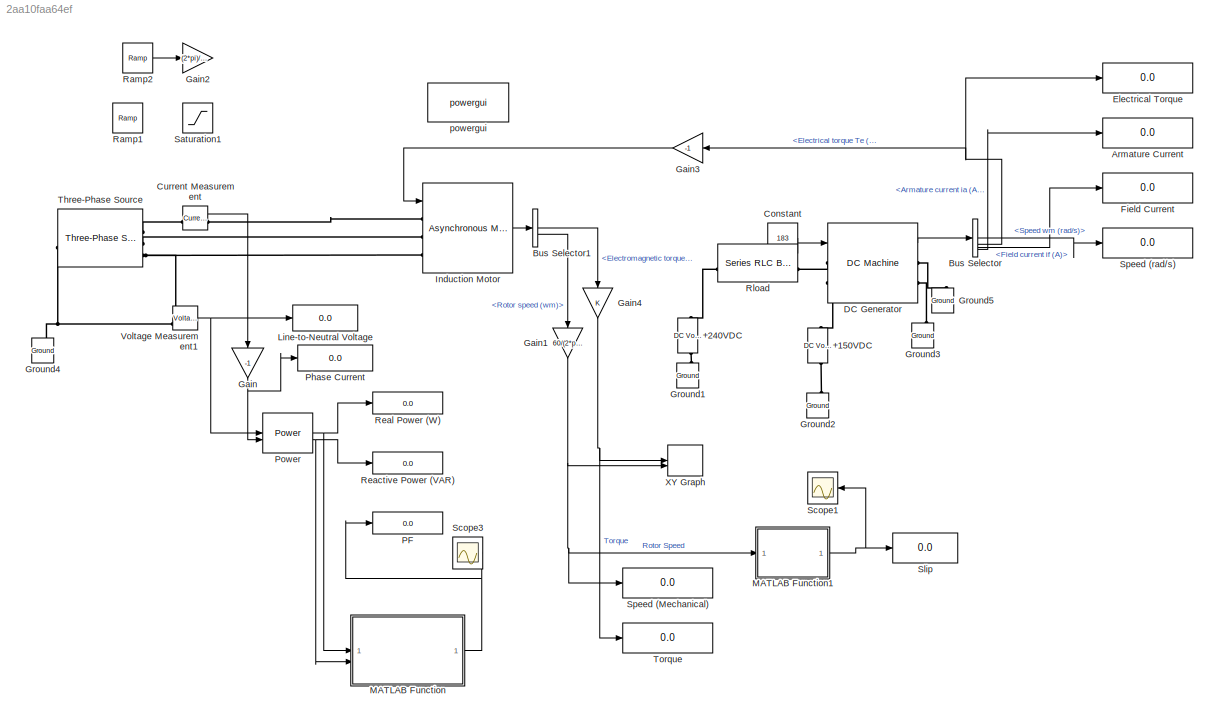
MODEL slx_2aa10faa64ef
KIND model
CONFIG AbsTol = auto
CONFIG EnableMultiTasking = off
CONFIG FixedStep = auto
CONFIG MaxStep = auto
CONFIG MinStep = auto
CONFIG RelTol = 1e-3
CONFIG SampleTimeConstraint = Unconstrained
CONFIG SolverName = ode15s
CONFIG StartTime = 0.0
CONFIG StopTime = 1
WORKSPACE source: mxarray member
WORKSPACE R = 10000
BLOCK [Reference] +150VDC  REF=spsDCVoltageSourceLib/DC Voltage Source
  LibrarySourceBlock = sps_lib/Sources/DC Voltage Source
  NameLocation = right
  SourceBlock = spsDCVoltageSourceLib/DC Voltage Source
  SourceType = DC Voltage Source
BLOCK [Reference] +240VDC  REF=spsDCVoltageSourceLib/DC Voltage Source
  LibrarySourceBlock = sps_lib/Sources/DC Voltage Source
  NameLocation = left
  SourceBlock = spsDCVoltageSourceLib/DC Voltage Source
  SourceType = DC Voltage Source
BLOCK [Display] Armature Current
  Decimation = 1
  NameLocation = top
BLOCK [BusSelector] Bus Selector
  OutputSignals = Speed wm (rad/s),Electrical torque Te (n m),Field current if (A),Armature current ia (A)
BLOCK [BusSelector] Bus Selector1
  OutputSignals = Mechanical.Electromagnetic torque Te (N*m),Mechanical.Rotor speed (wm)
BLOCK [Constant] Constant
  Value = 183
BLOCK [Reference] Current Measurement  REF=spsCurrentMeasurementLib/Current Measurement
  LibrarySourceBlock = sps_lib/Sensors and Measurements/Current Measurement
  SourceBlock = spsCurrentMeasurementLib/Current Measurement
  SourceType = Current Measurement
  UserDataPersistent = on
BLOCK [Reference] DC Generator  REF=spsDCMachineLib/DC Machine
  LibrarySourceBlock = sps_lib/Electrical Machines/DC Machine
  SourceBlock = spsDCMachineLib/DC Machine
  SourceType = DC machine
BLOCK [Display] Electrical Torque
  Decimation = 1
  NameLocation = top
BLOCK [Display] Field Current
  Decimation = 1
  NameLocation = top
BLOCK [Gain] Gain
  Gain = -1
  NameLocation = left
BLOCK [Gain] Gain1
  Gain = 60/(2*pi)
  NameLocation = left
BLOCK [Gain] Gain2
  Gain = (2*pi)/60
BLOCK [Gain] Gain3
  Gain = -1
  NameLocation = top
BLOCK [Gain] Gain4
  NameLocation = left
BLOCK [Reference] Ground1  REF=spsGroundLib/Ground
  LibrarySourceBlock = sps_lib/Utilities/Ground
  NameLocation = right
  SourceBlock = spsGroundLib/Ground
  SourceType = Ground
BLOCK [Reference] Ground2  REF=spsGroundLib/Ground
  LibrarySourceBlock = sps_lib/Utilities/Ground
  NameLocation = right
  SourceBlock = spsGroundLib/Ground
  SourceType = Ground
BLOCK [Reference] Ground3  REF=spsGroundLib/Ground
  LibrarySourceBlock = sps_lib/Utilities/Ground
  NameLocation = right
  SourceBlock = spsGroundLib/Ground
  SourceType = Ground
BLOCK [Reference] Ground4  REF=spsGroundLib/Ground
  LibrarySourceBlock = sps_lib/Utilities/Ground
  NameLocation = right
  SourceBlock = spsGroundLib/Ground
  SourceType = Ground
BLOCK [Reference] Ground5  REF=spsGroundLib/Ground
  LibrarySourceBlock = sps_lib/Utilities/Ground
  NameLocation = right
  SourceBlock = spsGroundLib/Ground
  SourceType = Ground
BLOCK [Reference] Induction Motor  REF=spsAsynchronousMachineSIUnitsLib/Asynchronous Machine
SI Units
  LibrarySourceBlock = sps_lib/Electrical Machines/Asynchronous Machine\nSI Units
  SourceBlock = spsAsynchronousMachineSIUnitsLib/Asynchronous Machine\nSI Units
  SourceType = Asynchronous Machine
BLOCK [Display] Line-to-Neutral Voltage
  Decimation = 1
  NameLocation = top
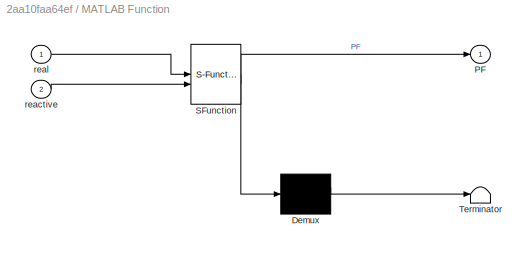
BLOCK [SubSystem] MATLAB Function
  ErrorFcn = Stateflow.Translate.translate
  PermitHierarchicalResolution = ExplicitOnly
  SFBlockType = MATLAB Function
  TreatAsAtomicUnit = on
BLOCK [Demux] MATLAB Function/ Demux 
  Outputs = 1
BLOCK [S-Function] MATLAB Function/ SFunction 
  EnableBusSupport = on
  FunctionName = sf_sfun
  PortCounts = [2 2]
  SFcnIsStateOwnerBlock = off
  SFunctionDeploymentMode = off
  Tag = Stateflow S-Function 2
BLOCK [Terminator] MATLAB Function/ Terminator 
BLOCK [Outport] MATLAB Function/PF
BLOCK [Inport] MATLAB Function/reactive
  Port = 2
BLOCK [Inport] MATLAB Function/real
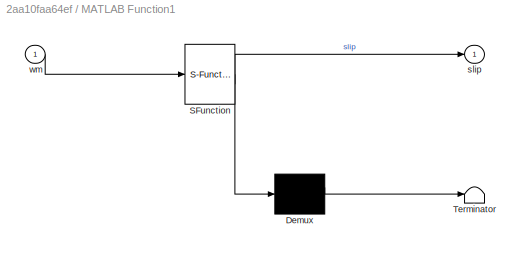
BLOCK [SubSystem] MATLAB Function1
  ErrorFcn = Stateflow.Translate.translate
  PermitHierarchicalResolution = ExplicitOnly
  SFBlockType = MATLAB Function
  TreatAsAtomicUnit = on
BLOCK [Demux] MATLAB Function1/ Demux 
  Outputs = 1
BLOCK [S-Function] MATLAB Function1/ SFunction 
  EnableBusSupport = on
  FunctionName = sf_sfun
  PortCounts = [1 2]
  SFcnIsStateOwnerBlock = off
  SFunctionDeploymentMode = off
  Tag = Stateflow S-Function 1
BLOCK [Terminator] MATLAB Function1/ Terminator 
BLOCK [Outport] MATLAB Function1/slip
BLOCK [Inport] MATLAB Function1/wm
BLOCK [Display] PF
  Decimation = 1
BLOCK [Display] Phase Current
  Decimation = 1
BLOCK [Reference] Power  REF=spsPowerLib/Power
  LibrarySourceBlock = sps_lib/Sensors and Measurements/Power
  SourceBlock = spsPowerLib/Power
  SourceType = Power
BLOCK [Reference] Ramp1  REF=simulink/Sources/Ramp
  SourceBlock = simulink/Sources/Ramp
  SourceType = Ramp
BLOCK [Reference] Ramp2  REF=simulink/Sources/Ramp
  SourceBlock = simulink/Sources/Ramp
  SourceType = Ramp
BLOCK [Display] Reactive Power (VAR)
  Decimation = 1
BLOCK [Display] Real Power (W)
  Decimation = 1
BLOCK [Reference] Rload  REF=spsSeriesRLCBranchLib/Series RLC Branch
  LibrarySourceBlock = sps_lib/Passives/Series RLC Branch
  SourceBlock = spsSeriesRLCBranchLib/Series RLC Branch
  SourceType = Series RLC Branch
BLOCK [Saturate] Saturation1
  UpperLimit = 1750
BLOCK [Scope] Scope1
  Floating = off
  NameLocation = top
  NumInputPorts = 1
  ScopeSpecificationString = Simulink.scopes.TimeScopeBlockCfg('CurrentConfiguration', extmgr.ConfigurationSet(extmgr.Configuration('Core','General UI',true),extmgr.Configuration('Core','Source UI',true),extmgr.Configuration('Sources','WiredSimulink',true,'DataLoggingVariableName','ScopeData1'),extmgr.Configuration('Visuals','Time Domain',true,'SerializedDisplays',{struct('MinYLimReal','-0.18921','MaxYLimReal','1.13213','YLab...<+2135ch>
BLOCK [Scope] Scope3
  Floating = off
  NameLocation = top
  NumInputPorts = 1
  ScopeSpecificationString = Simulink.scopes.TimeScopeBlockCfg('CurrentConfiguration', extmgr.ConfigurationSet(extmgr.Configuration('Core','General UI',true),extmgr.Configuration('Core','Source UI',true),extmgr.Configuration('Sources','WiredSimulink',true,'DataLoggingVariableName','ScopeData2'),extmgr.Configuration('Visuals','Time Domain',true,'SerializedDisplays',{struct('MinYLimReal','-0.1121','MaxYLimReal','1.00886','YLabe...<+1567ch>
BLOCK [Display] Slip
  Decimation = 1
BLOCK [Display] Speed (Mechanical)
  Decimation = 1
BLOCK [Display] Speed (rad//s)
  Decimation = 1
  NameLocation = top
BLOCK [Reference] Three-Phase Source  REF=spsThreePhaseSourceLib/Three-Phase Source
  LibrarySourceBlock = sps_lib/Sources/Three-Phase Source
  SourceBlock = spsThreePhaseSourceLib/Three-Phase Source
  SourceType = Three-Phase Source
BLOCK [Display] Torque
  Decimation = 1
BLOCK [Reference] Voltage Measurement1  REF=spsVoltageMeasurementLib/Voltage Measurement
  LibrarySourceBlock = sps_lib/Sensors and Measurements/Voltage Measurement
  SourceBlock = spsVoltageMeasurementLib/Voltage Measurement
  SourceType = Voltage Measurement
  UserDataPersistent = on
BLOCK [Record] XY Graph
  CompatibilityTag = XY
  FileSettingsInternal = {"entries":[{"content":{"excelSettings":{"content":{},"type":"Streamout.ExcelSettings"}},"type":"Streamout.FileSettingStorage","uuid":""}],"packageUris":["http:\/\/schema.mathworks.com\/mf0\/streamout_blocks\/R2020a"],"version":"1.0"}
  Layout = [1 1]
  SignalsInternal = {"entries":[{"content":{"signals":[{"content":{"blockPath":[],"dimensions":[1],"domain":"","lineColor":"#a2142f","plots":[ 1 ],"port":1,"sid":[""],"signalID":1,"signalName":"Torque"},"type":"RecordBlkView.Signal","uuid":""},{"content":{"blockPath":[],"dimensions":[1],"domain":"","lineColor":"#139fff","plots":[ 1 ],"port":2,"sid":[""],"signalID":2,"signalName":"Rotor Speed"},"type":"RecordBlkView.S...<+163ch>
  VisualizationBindings = {"xyplotplugin":{"info":[{"series":[{"bindingParametersList":[{"parameter":"X-Axis","signalID":2,"signalName":"Rotor Speed"},{"parameter":"Y-Axis","signalID":1,"signalName":"Torque"}],"seriesID":0}],"subplotID":1}]}}
BLOCK [Reference] powergui  REF=sps_lib/powergui
  LibrarySourceBlock = sps_lib/powergui
  Priority = 1
  SourceBlock = sps_lib/powergui
  SourceType = PSB option menu block
LINE Bus Selector1:1 -> Gain4:1
LINE Bus Selector1:2 -> Gain1:1
LINE Bus Selector:1 -> Speed (rad//s):1
NET Bus Selector:2 -> Electrical Torque:1, Gain3:1
LINE Bus Selector:3 -> Field Current:1
LINE Bus Selector:4 -> Armature Current:1
LINE Constant:1 -> DC Generator:1
LINE Current Measurement:1 -> Gain:1
LINE DC Generator:1 -> Bus Selector:1
NET Gain1:1 -> MATLAB Function1:1, Speed (Mechanical):1, XY Graph:2
LINE Gain3:1 -> Induction Motor:1
NET Gain4:1 -> Torque:1, XY Graph:1
NET Gain:1 -> Phase Current:1, Power:2
LINE Induction Motor:1 -> Bus Selector1:1
NET MATLAB Function1:1 -> Scope1:1, Slip:1
NET MATLAB Function:1 -> PF:1, Scope3:1
NET Power:1 -> MATLAB Function:1, Real Power (W):1
NET Power:2 -> MATLAB Function:2, Reactive Power (VAR):1
LINE Ramp2:1 -> Gain2:1
NET Voltage Measurement1:1 -> Line-to-Neutral Voltage:1, Power:1
PLINE +150VDC:LConn1 -- Ground2:LConn1
PLINE +150VDC:RConn1 -- DC Generator:LConn2
PLINE +240VDC:LConn1 -- Ground1:LConn1
PLINE +240VDC:RConn1 -- Rload:RConn1
PLINE Current Measurement:LConn1 -- Three-Phase Source:RConn1
PLINE Current Measurement:RConn1 -- Induction Motor:LConn1
PLINE DC Generator:LConn1 -- Rload:LConn1
PLINE DC Generator:RConn1 -- Ground5:LConn1
PLINE DC Generator:RConn2 -- Ground3:LConn1
PNET net1: Ground4:LConn1 -- Three-Phase Source:LConn1 -- Voltage Measurement1:LConn2
PLINE Induction Motor:LConn2 -- Three-Phase Source:RConn2
PNET net2: Induction Motor:LConn3 -- Three-Phase Source:RConn3 -- Voltage Measurement1:LConn1
note: NET lines group one-source signal fan-out (src -> all destinations, sorted); 1:1 wires keep LINE; PNET lines group multi-terminal physical nets as a canonical sorted terminal list (undirected conserving connections); 2-terminal nets keep the pairwise PLINE form
CHART MATLAB Function states=1 transitions=1
  STATE_LABEL 'eML_blk_kernel()'
  STATE_LABEL 'SCRIPT:\nfunction PF = fcn(real, reactive)\n\nPF = cos(atan(real/reactive));\n'
CHART MATLAB Function1 states=1 transitions=1
  STATE_LABEL 'eML_blk_kernel()'
  STATE_LABEL 'SCRIPT:\nfunction slip = fcn(wm)\n\nws = 1800;\nslip = (ws-wm)/ws;\n'
CHART  states=0 transitions=0
CHART  states=0 transitions=0
